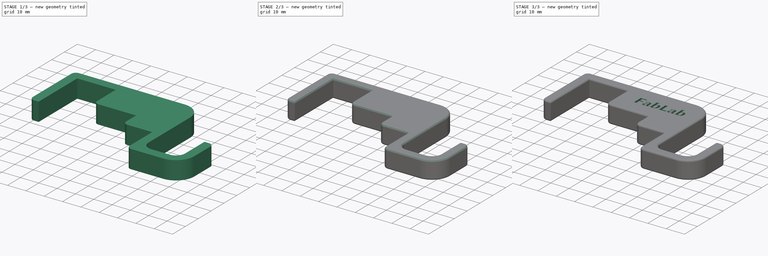
[diagram: build sequence overview — one tinted view per stage of 3, left to right]
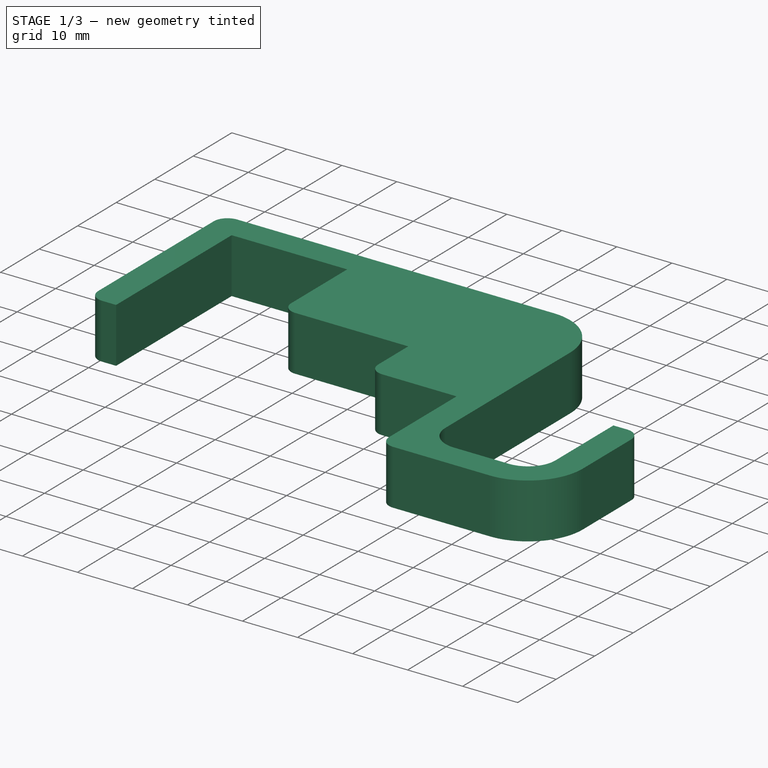
[diagram: stage 1 of 3 — iso view after this stage's code; geometry added in this stage tinted green]
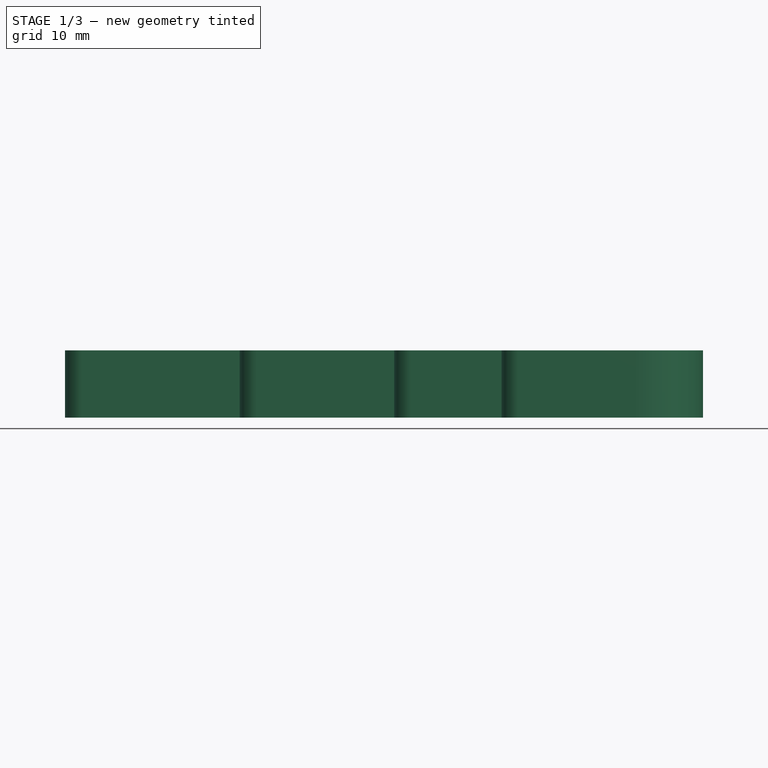
[diagram: stage 1 of 3 — front view after this stage's code; geometry added in this stage tinted green]
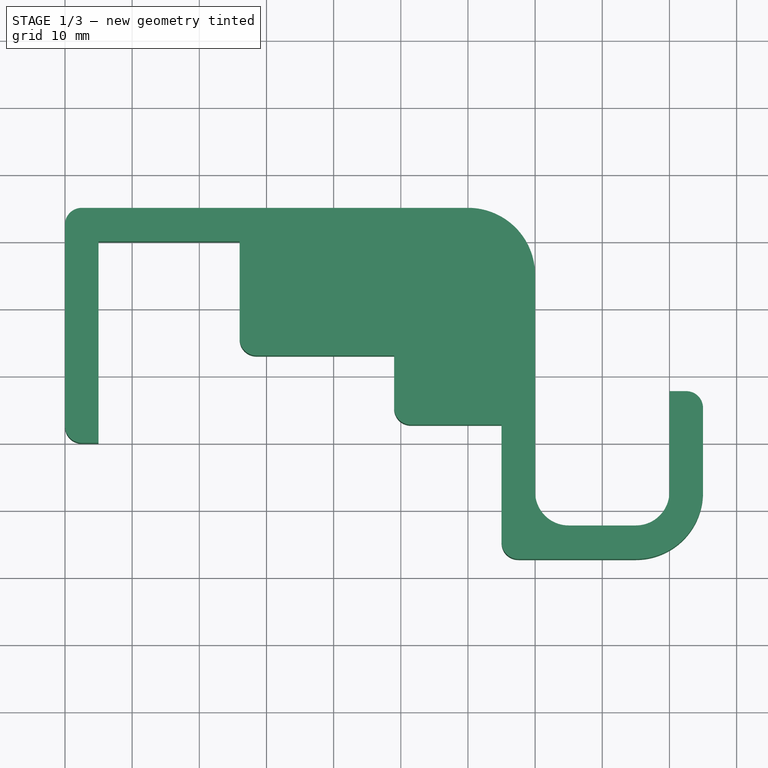
[diagram: stage 1 of 3 — top view after this stage's code; geometry added in this stage tinted green]
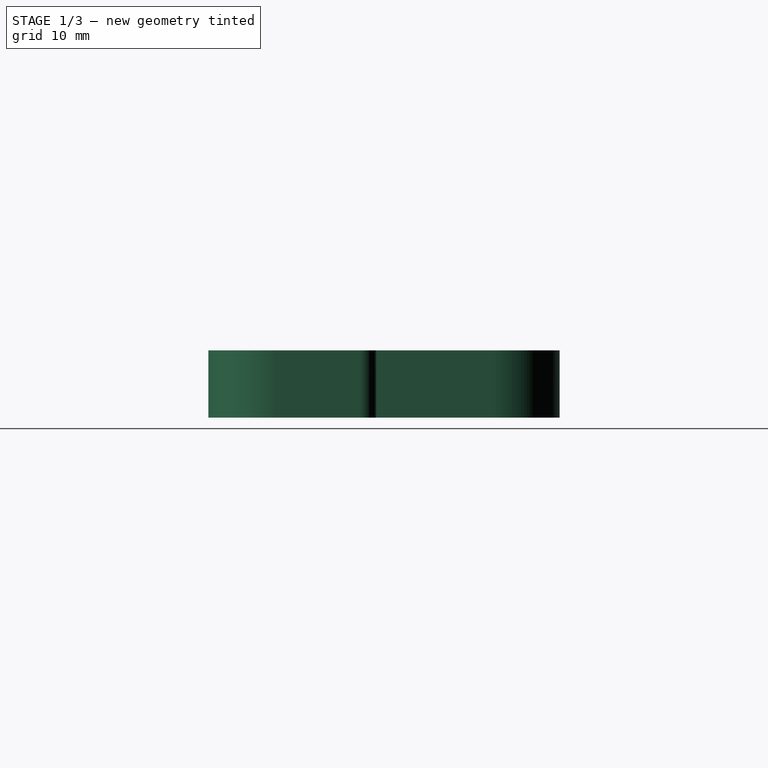
[diagram: stage 1 of 3 — right view after this stage's code; geometry added in this stage tinted green]
FCSTD DOCUMENT  (FreeCAD 0.16R6624 (Git))
Label: fablab_door_hook
License: All rights reserved
LicenseURL: http://en.wikipedia.org/wiki/All_rights_reserved
objects: PartDesign::Fillet×2, Part::Part2DObjectPython×2, PartDesign::Pocket×2, Sketcher::SketchObject×1, PartDesign::Pad×1
note: 11 computed .brp shape members not serialized (recipe doc carries the construction recipe); baked Part::Feature solids carry a one-line shape summary decoded from their .brp

FEATURE [Sketcher::SketchObject] Sketch
  sketch-geometry (20):
    g0: LineSegment StartX=0 StartY=0 StartZ=0 EndX=0 EndY=35 EndZ=0
    g1: LineSegment StartX=70 StartY=25 StartZ=0 EndX=70 EndY=-7.3 EndZ=0
    g2: LineSegment StartX=75 StartY=-12.3 StartZ=0 EndX=85 EndY=-12.3 EndZ=0
    g3: LineSegment StartX=90 StartY=-7.3 StartZ=0 EndX=90 EndY=7.7 EndZ=0
    g4: LineSegment StartX=90 StartY=7.7 StartZ=0 EndX=95 EndY=7.7 EndZ=0
    g5: LineSegment StartX=95 StartY=7.7 StartZ=0 EndX=95 EndY=-7.3 EndZ=0
    g6: LineSegment StartX=85 StartY=-17.3 StartZ=0 EndX=65 EndY=-17.3 EndZ=0
    g7: LineSegment StartX=65 StartY=-17.3 StartZ=0 EndX=65 EndY=2.7 EndZ=0
    g8: LineSegment StartX=65 StartY=2.7 StartZ=0 EndX=49 EndY=2.7 EndZ=0
    g9: LineSegment StartX=49 StartY=2.7 StartZ=0 EndX=49 EndY=13 EndZ=0
    g10: LineSegment StartX=49 StartY=13 StartZ=0 EndX=26 EndY=13 EndZ=0
    g11: LineSegment StartX=26 StartY=13 StartZ=0 EndX=26 EndY=30 EndZ=0
    g12: LineSegment StartX=26 StartY=30 StartZ=0 EndX=5 EndY=30 EndZ=0
    g13: LineSegment StartX=5 StartY=30 StartZ=0 EndX=5 EndY=0 EndZ=0
    g14: LineSegment StartX=5 StartY=0 StartZ=0 EndX=0 EndY=0 EndZ=0
    g15: ArcOfCircle CenterX=85 CenterY=-7.3 CenterZ=0 NormalX=0 NormalY=0 NormalZ=1 Radius=5 StartAngle=4.71239 EndAngle=6.28319
    g16: ArcOfCircle CenterX=75 CenterY=-7.3 CenterZ=0 NormalX=0 NormalY=0 NormalZ=1 Radius=5 StartAngle=3.14159 EndAngle=4.71239
    g17: ArcOfCircle CenterX=85 CenterY=-7.3 CenterZ=0 NormalX=0 NormalY=0 NormalZ=1 Radius=10 StartAngle=4.71239 EndAngle=6.28319
    g18: LineSegment StartX=60 StartY=35 StartZ=0 EndX=0 EndY=35 EndZ=0
    g19: ArcOfCircle CenterX=60 CenterY=25 CenterZ=0 NormalX=0 NormalY=0 NormalZ=1 Radius=10 StartAngle=0 EndAngle=1.5708
  constraints (54):
    c: Vertical(g0)
    c: Vertical(g1)
    c: Horizontal(g2)
    c: Vertical(g3)
    c: Coincident(g3,g4)
    c: Horizontal(g4)
    c: Coincident(g4,g5)
    c: Vertical(g5)
    c: Horizontal(g6)
    c: Vertical(g7)
    c: Horizontal(g8)
    c: Coincident(g8,g9)
    c: Vertical(g9)
    c: Coincident(g9,g10)
    c: Horizontal(g10)
    c: Coincident(g10,g11)
    c: Vertical(g11)
    c: Coincident(g11,g12)
    c: Horizontal(g12)
    c: Coincident(g12,g13)
    c: Vertical(g13)
    c: Coincident(g13,g14)
    c: Coincident(g14,g-1)
    c: Coincident(g-1,g0)
    c: DistanceX(g14) = -5
    c: DistanceY(g12,g0) = 5
    c: DistanceX(g4,g3) = -5
    c: DistanceX(g12) = -21
    c: DistanceY(g13) = -30
    c: DistanceY(g11) = 17
    c: Tangent(g3,g15) = -1.5708
    c: Tangent(g2,g15) = -1.5708
    c: Tangent(g2,g16) = -1.5708
    c: Tangent(g1,g16) = -1.5708
    c: Tangent(g5,g17) = 1.5708
    c: Tangent(g6,g17) = 1.5708
    c: DistanceX(g8,g7) = 16
    c: DistanceX(g10,g9) = 23
    c: Coincident(g6,g7)
    c: DistanceY(g8,g9) = 10.3
    c: DistanceY(g7) = 20
    c: Coincident(g7,g8)
    c: DistanceY(g2,g6) = -5
    c: Radius(g16) = 5
    c: Radius(g15) = 5
    c: DistanceY(g2,g3) = 20
    c: Horizontal(g14)
    c: Radius(g17) = 10
    c: Horizontal(g18)
    c: Coincident(g18,g0)
    c: Tangent(g18,g19) = -1.5708
    c: Tangent(g1,g19) = 1.5708
    c: Radius(g19) = 10
    c: DistanceX(g7,g1) = 5
FEATURE [PartDesign::Pad] Pad
  Length = 10
  Length2 = 100
  Sketch = -> Sketch
  Type = 0
FEATURE [PartDesign::Fillet] Fillet
  Base = -> Pad [Edge56,Edge53,Edge38,Edge35,Edge32,Edge29,Edge8,Edge14,Edge26,Edge2]
  Radius = 2.5
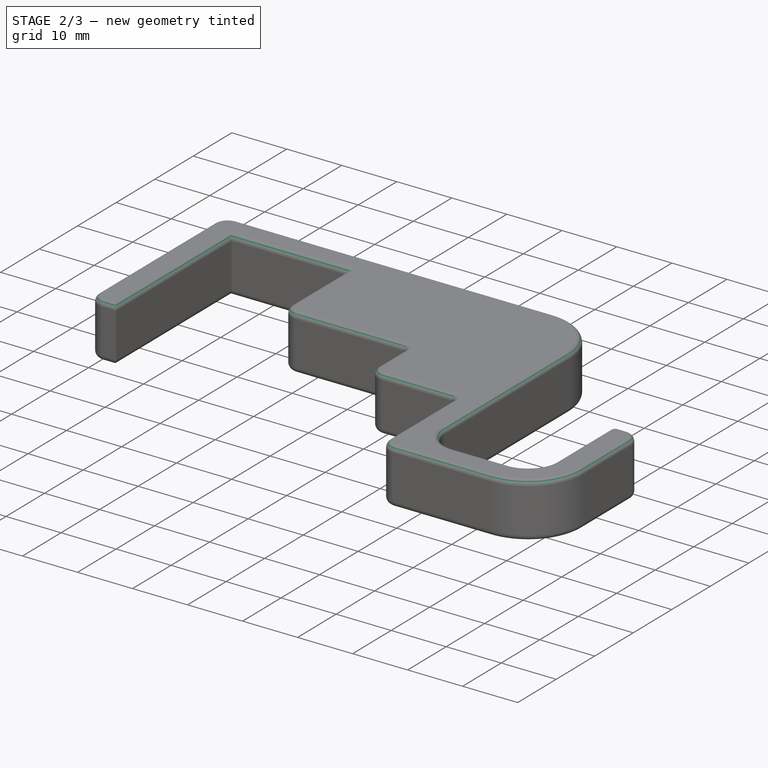
[diagram: stage 2 of 3 — iso view after this stage's code; geometry added in this stage tinted green]
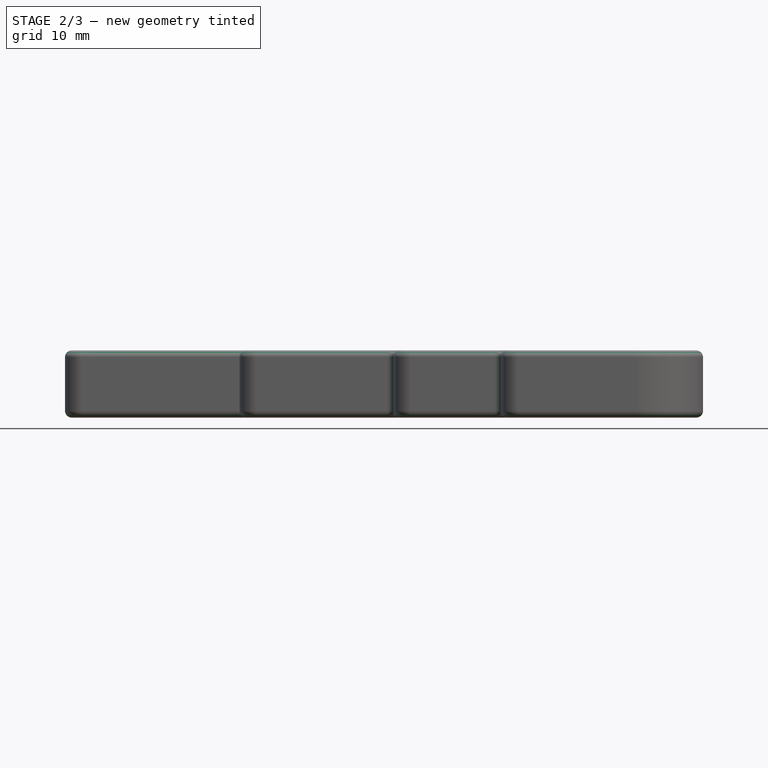
[diagram: stage 2 of 3 — front view after this stage's code; geometry added in this stage tinted green]
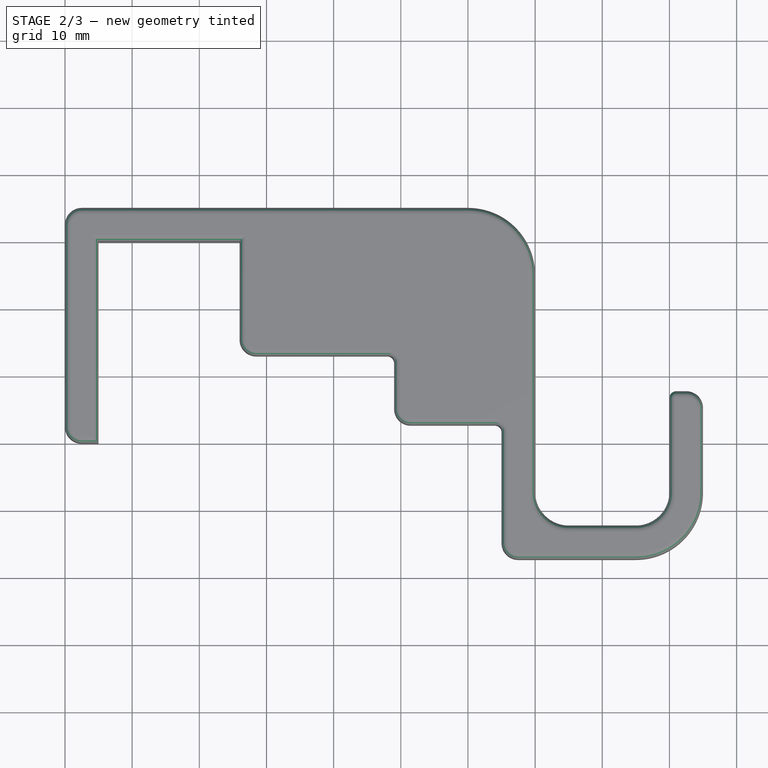
[diagram: stage 2 of 3 — top view after this stage's code; geometry added in this stage tinted green]
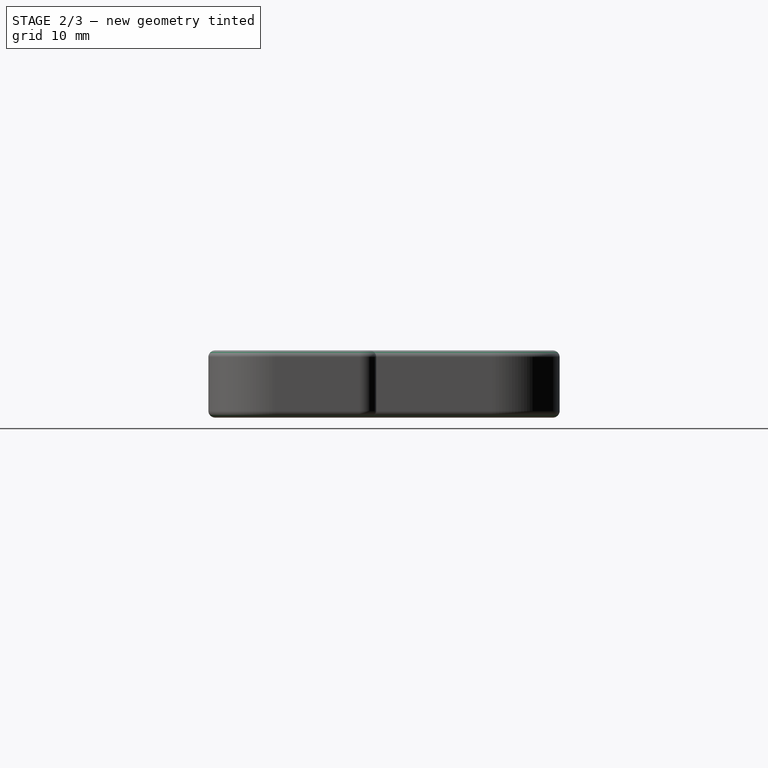
[diagram: stage 2 of 3 — right view after this stage's code; geometry added in this stage tinted green]
FEATURE [PartDesign::Fillet] Fillet001
  Base = -> Fillet [Edge1,Edge5,Edge6,Edge7,Edge8,Edge9,Edge10,Edge11,Edge12,Edge13,Edge14,Edge15,Edge16,Edge17,Edge18,Edge19,Edge20,Edge21,Edge22,Edge23,Edge24,Edge25,Edge26,Edge27,Edge28,Edge29,Edge30,Edge31,Edge32,Edge33,Edge34,Edge4,Edge36,Edge38,Edge39,Edge40,Edge41,Edge42,Edge43,Edge44,+22 more]
  Radius = 1
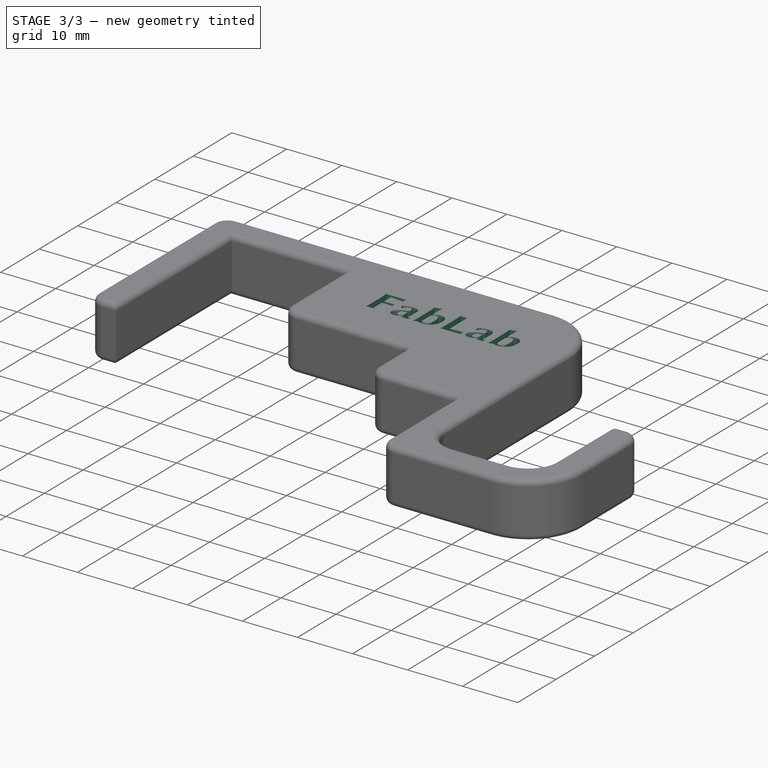
[diagram: stage 3 of 3 — iso view after this stage's code; geometry added in this stage tinted green]
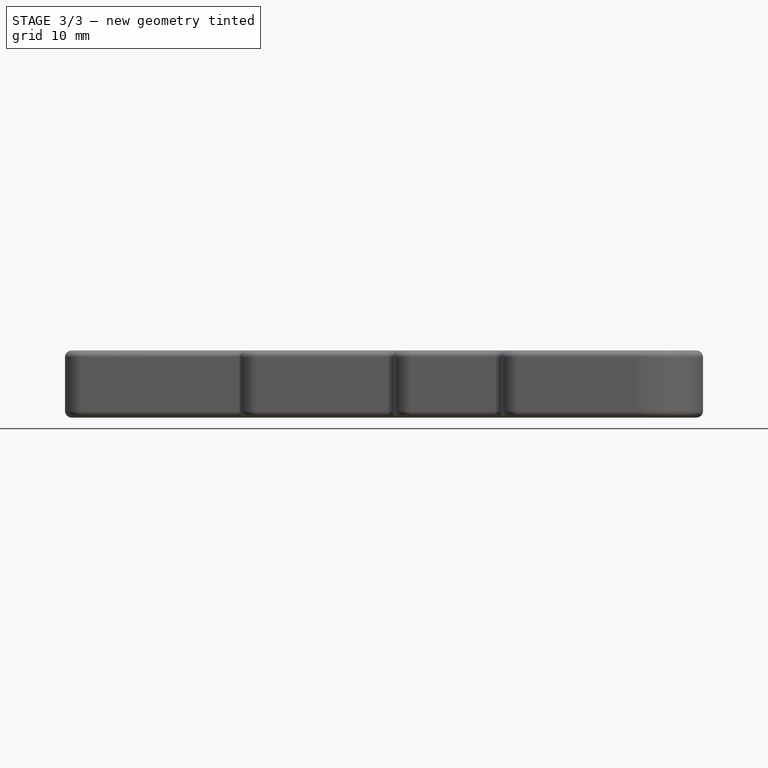
[diagram: stage 3 of 3 — front view after this stage's code; geometry added in this stage tinted green]
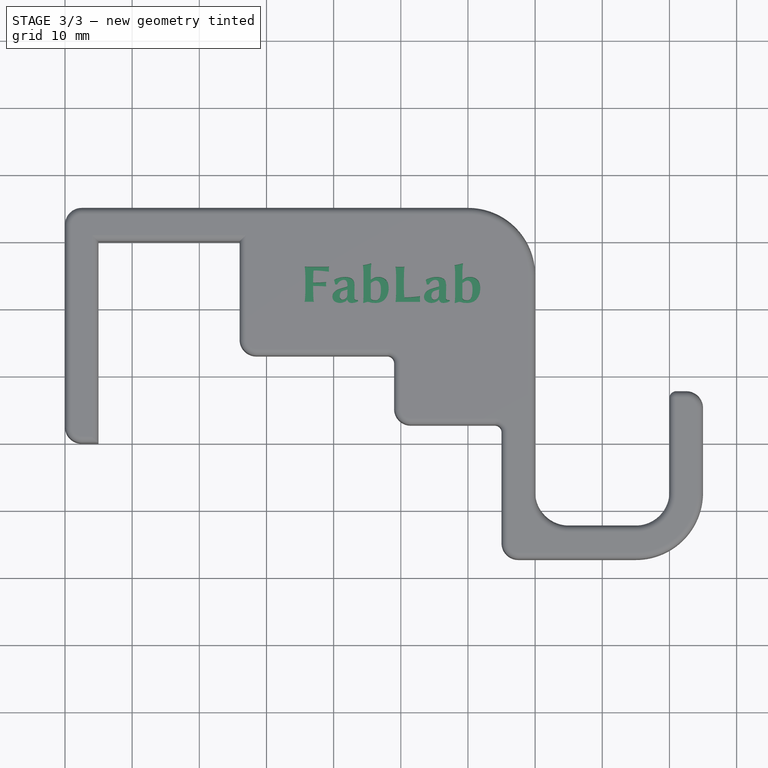
[diagram: stage 3 of 3 — top view after this stage's code; geometry added in this stage tinted green]
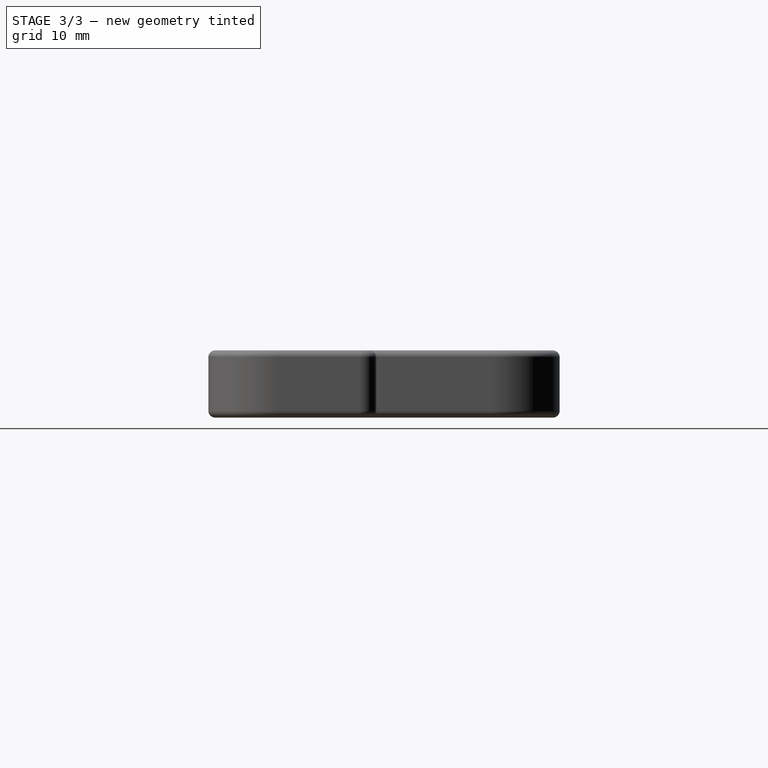
[diagram: stage 3 of 3 — right view after this stage's code; geometry added in this stage tinted green]
FEATURE [Part::Part2DObjectPython] ShapeString  # Draft 2D object (typed FeaturePython)
  FontFile = <path>
  Placement = pos=(60.5,21,0) rot=(0,1,0;3.14159rad)
  Size = 3
  String = FabLab
  Support = -> Fillet001
  Tracking = 0
FEATURE [PartDesign::Pocket] Pocket
  Length = 3
  Sketch = -> ShapeString
  Type = 0
FEATURE [Part::Part2DObjectPython] ShapeString001  # Draft 2D object (typed FeaturePython)
  FontFile = <path>
  Placement = pos=(35,21,10) rot=(0,0,1;0rad)
  Size = 3
  String = FabLab
  Support = -> Pocket
  Tracking = 0
FEATURE [PartDesign::Pocket] Pocket001
  Length = 3
  Sketch = -> ShapeString001
  Type = 0
note: 2 file-system paths scrubbed to <path> (originals preserved in the JSON sidecar)
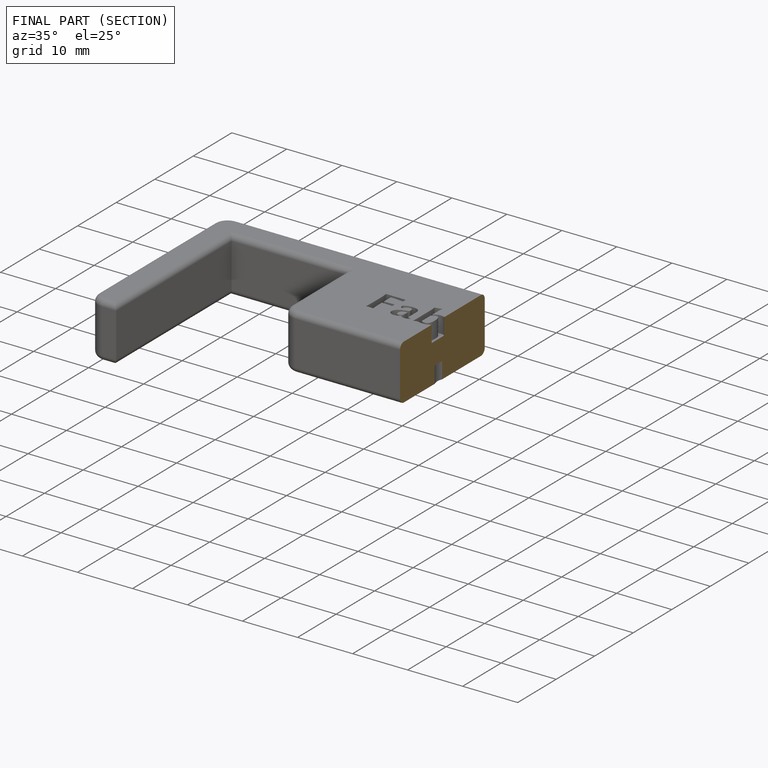
[diagram: finished part — half-section view (interior)]
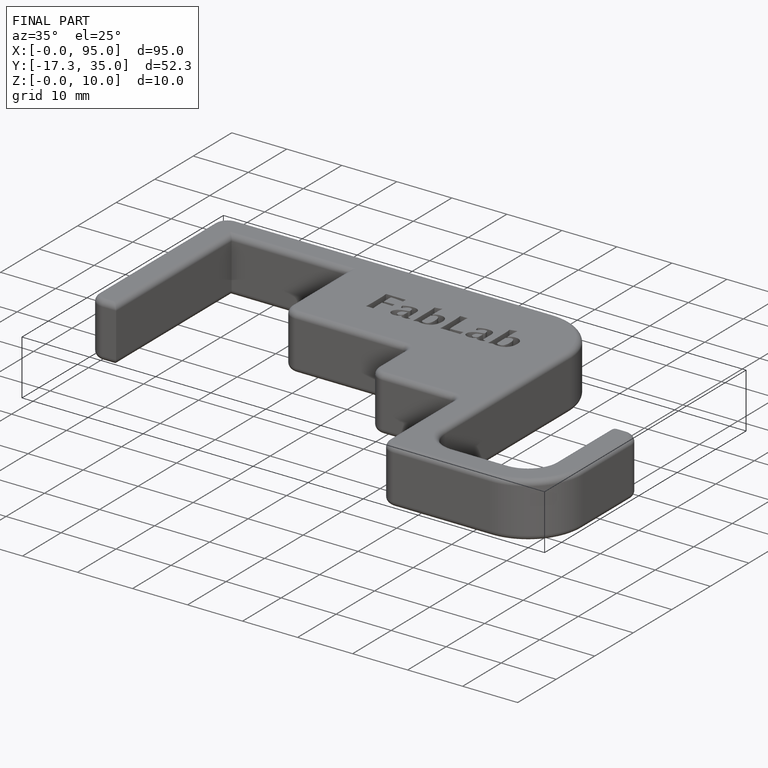
[diagram: finished part — iso view with bounding-box wireframe]
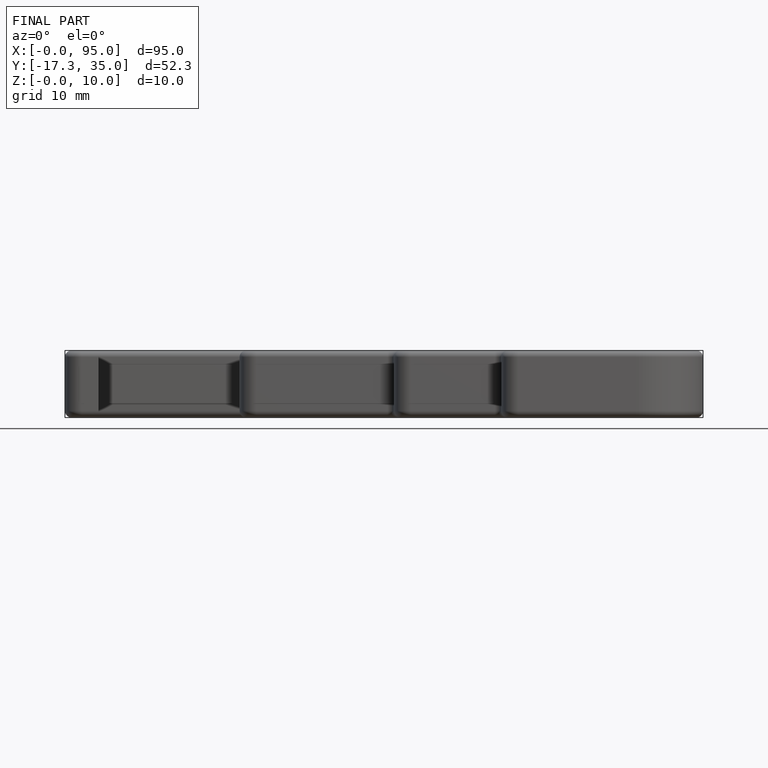
[diagram: finished part — front view with bounding-box wireframe]
